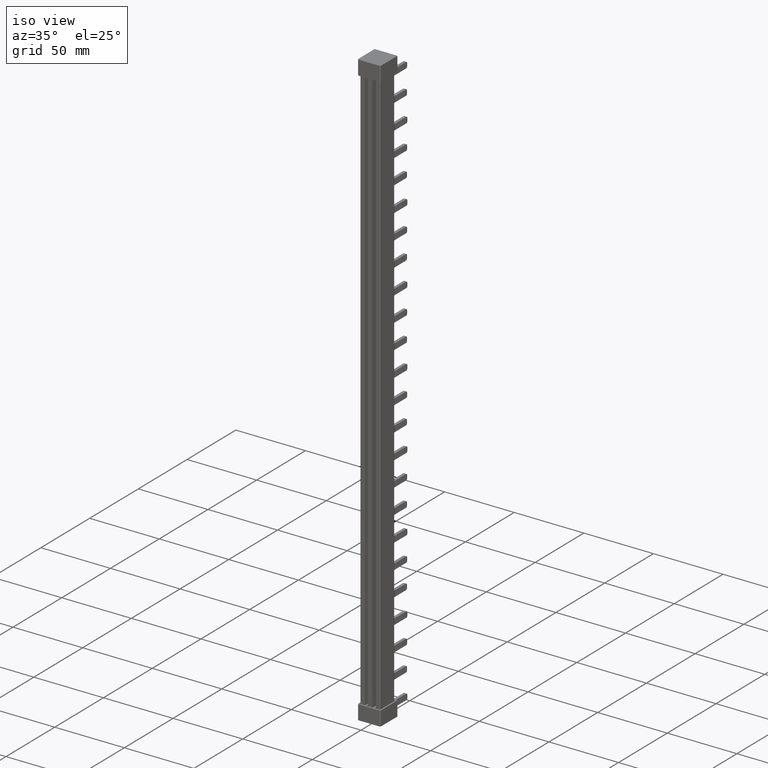
[diagram: clean part render]
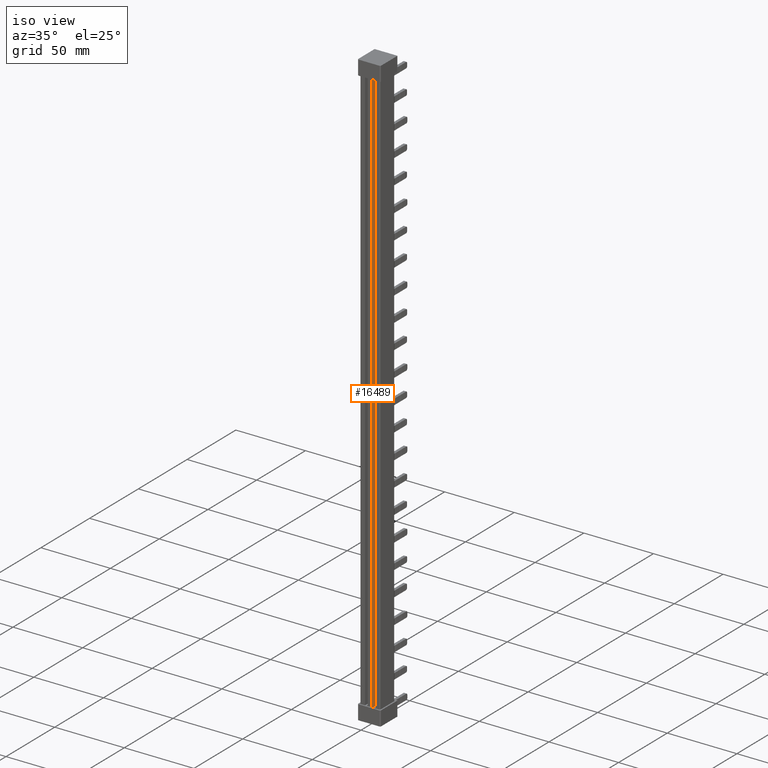
[diagram: same view with one face highlighted and labeled with its STEP entity id]
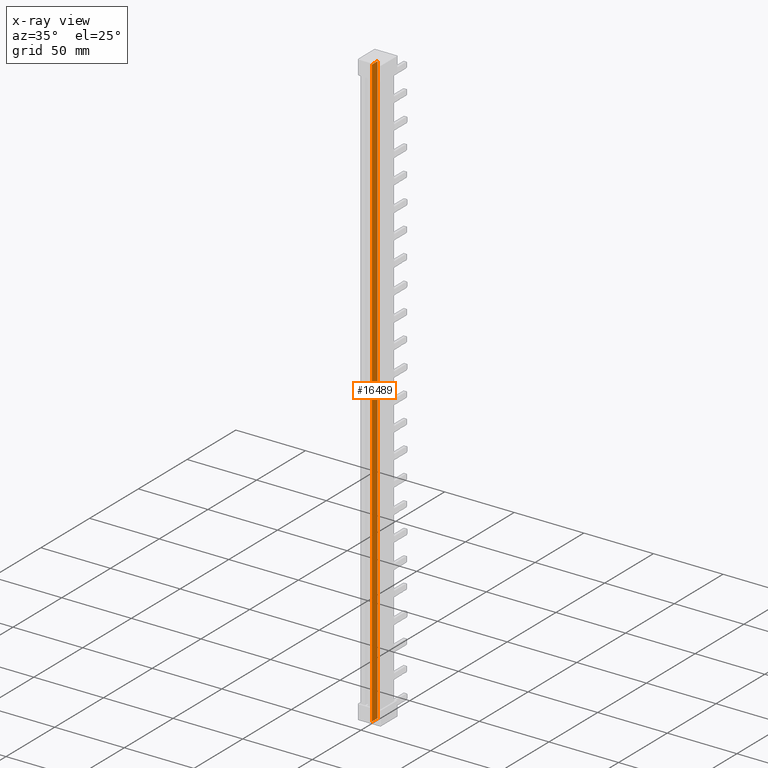
[diagram: x-ray of the same camera — body ghosted, the highlighted face saturated]
A machine part, iso view. The second image highlights one B-rep face of the part: STEP entity #16489.
The next image is the same camera in x-ray: the body ghosted, the highlighted face saturated — about 0% of this face is hidden behind the body in this view.
In plain terms, the highlighted planar face has unit normal (-1, 0, 0).
Its self-contained STEP definition (entity closure, byte-faithful):
#7471 = EDGE_CURVE ( 'NONE', #41587, #38400, #15403, .T. ) ;
#7474 = EDGE_CURVE ( 'NONE', #38423, #38396, #15466, .T. ) ;
#7477 = EDGE_CURVE ( 'NONE', #38423, #38393, #15447, .T. ) ;
#7486 = EDGE_CURVE ( 'NONE', #41587, #38395, #15504, .T. ) ;
#7505 = EDGE_CURVE ( 'NONE', #38400, #38393, #13473, .T. ) ;
#7549 = EDGE_CURVE ( 'NONE', #38395, #38396, #13642, .T. ) ;
#13473 = LINE ( 'NONE', #13478, #40336 ) ;
#13478 = CARTESIAN_POINT ( 'NONE',  ( 7.950000000000123600, -2.775557561562891400E-013, 219.0000000000000000 ) ) ;
#13491 = DIRECTION ( 'NONE',  ( 0.0000000000000000000, 0.0000000000000000000, 1.000000000000000000 ) ) ;
#13603 = DIRECTION ( 'NONE',  ( -0.0000000000000000000, -1.000000000000000000, -0.0000000000000000000 ) ) ;
#13631 = CARTESIAN_POINT ( 'NONE',  ( 7.950000000000123600, 16.29999999999973100, 217.8000000000546100 ) ) ;
#13642 = LINE ( 'NONE', #13631, #40379 ) ;
#15403 = LINE ( 'NONE', #15404, #41299 ) ;
#15404 = CARTESIAN_POINT ( 'NONE',  ( 7.950000000000123600, -8.991461328757370800, -208.8000000000544400 ) ) ;
#15405 = DIRECTION ( 'NONE',  ( -0.0000000000000000000, -1.000000000000000000, 0.0000000000000000000 ) ) ;
#15447 = LINE ( 'NONE', #15453, #40278 ) ;
#15453 = CARTESIAN_POINT ( 'NONE',  ( 7.950000000000123600, -2.775557561562891400E-013, 219.0000000000000000 ) ) ;
#15466 = LINE ( 'NONE', #15478, #40312 ) ;
#15468 = DIRECTION ( 'NONE',  ( -0.0000000000000000000, 0.0000000000000000000, -1.000000000000000000 ) ) ;
#15478 = CARTESIAN_POINT ( 'NONE',  ( 7.950000000000123600, -2.775557561562891400E-013, 209.8000000000553800 ) ) ;
#15487 = DIRECTION ( 'NONE',  ( 0.0000000000000000000, -0.0000000000000000000, 1.000000000000000000 ) ) ;
#15504 = LINE ( 'NONE', #15513, #40279 ) ;
#15513 = CARTESIAN_POINT ( 'NONE',  ( 7.950000000000123600, 5.673275106952147000, 219.0000000000000000 ) ) ;
#15519 = DIRECTION ( 'NONE',  ( 0.0000000000000000000, -0.0000000000000000000, 1.000000000000000000 ) ) ;
#15863 = CARTESIAN_POINT ( 'NONE',  ( 7.950000000000123600, 5.673275106952147000, 217.8000000000546100 ) ) ;
#15864 = CARTESIAN_POINT ( 'NONE',  ( 7.950000000000123600, -2.775557561562891400E-013, -199.6000000000546200 ) ) ;
#15869 = CARTESIAN_POINT ( 'NONE',  ( 7.950000000000123600, -2.775557561562891400E-013, -208.8000000000544400 ) ) ;
#15899 = CARTESIAN_POINT ( 'NONE',  ( 7.950000000000123600, -2.775557561562891400E-013, 217.8000000000546100 ) ) ;
#15967 = CARTESIAN_POINT ( 'NONE',  ( 7.950000000000123600, -2.775557561562891400E-013, 208.6000000000546200 ) ) ;
#16032 = CARTESIAN_POINT ( 'NONE',  ( 7.950000000000123600, 5.673275106952147000, -208.8000000000544100 ) ) ;
#16489 = ADVANCED_FACE ( 'NONE', ( #20379 ), #20391, .F. ) ;
#20378 = DIRECTION ( 'NONE',  ( -1.000000000000000000, 0.0000000000000000000, 0.0000000000000000000 ) ) ;
#20379 = FACE_OUTER_BOUND ( 'NONE', #26229, .T. ) ;
#20391 = PLANE ( 'NONE',  #35841 ) ;
#20392 = DIRECTION ( 'NONE',  ( 0.0000000000000000000, 0.0000000000000000000, 1.000000000000000000 ) ) ;
#20419 = CARTESIAN_POINT ( 'NONE',  ( 7.950000000000123600, -8.991461328757370800, 219.0000000000000000 ) ) ;
#23652 = ORIENTED_EDGE ( 'NONE', *, *, #7505, .F. ) ;
#23654 = ORIENTED_EDGE ( 'NONE', *, *, #7477, .T. ) ;
#23663 = ORIENTED_EDGE ( 'NONE', *, *, #7474, .F. ) ;
#23688 = ORIENTED_EDGE ( 'NONE', *, *, #7549, .T. ) ;
#23711 = ORIENTED_EDGE ( 'NONE', *, *, #7486, .T. ) ;
#23726 = ORIENTED_EDGE ( 'NONE', *, *, #7471, .F. ) ;
#26229 = EDGE_LOOP ( 'NONE', ( #23654, #23652, #23726, #23711, #23688, #23663 ) ) ;
#35841 = AXIS2_PLACEMENT_3D ( 'NONE', #20419, #20378, #20392 ) ;
#38393 = VERTEX_POINT ( 'NONE', #15864 ) ;
#38395 = VERTEX_POINT ( 'NONE', #15863 ) ;
#38396 = VERTEX_POINT ( 'NONE', #15899 ) ;
#38400 = VERTEX_POINT ( 'NONE', #15869 ) ;
#38423 = VERTEX_POINT ( 'NONE', #15967 ) ;
#40278 = VECTOR ( 'NONE', #15468, 1000.000000000000000 ) ;
#40279 = VECTOR ( 'NONE', #15519, 1000.000000000000000 ) ;
#40312 = VECTOR ( 'NONE', #15487, 1000.000000000000000 ) ;
#40336 = VECTOR ( 'NONE', #13491, 1000.000000000000000 ) ;
#40379 = VECTOR ( 'NONE', #13603, 1000.000000000000000 ) ;
#41299 = VECTOR ( 'NONE', #15405, 1000.000000000000000 ) ;
#41587 = VERTEX_POINT ( 'NONE', #16032 ) ;